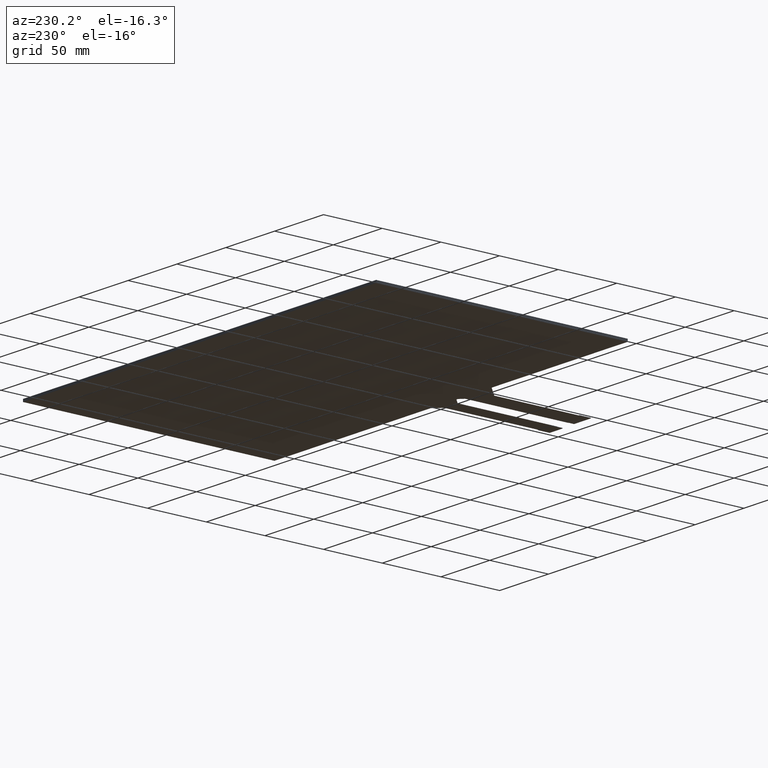
[diagram: clean part render]
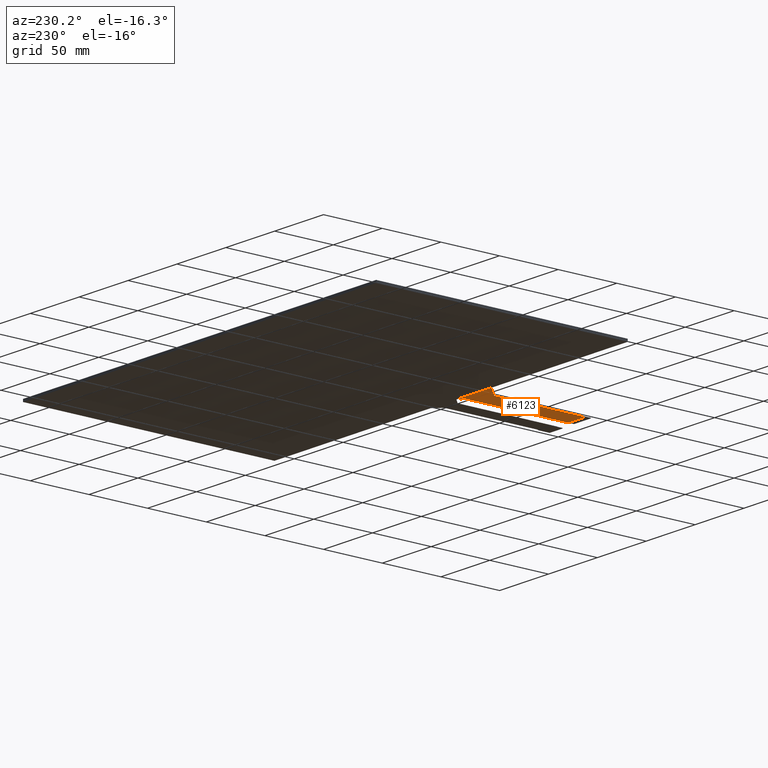
[diagram: same view with one face highlighted and labeled with its STEP entity id]
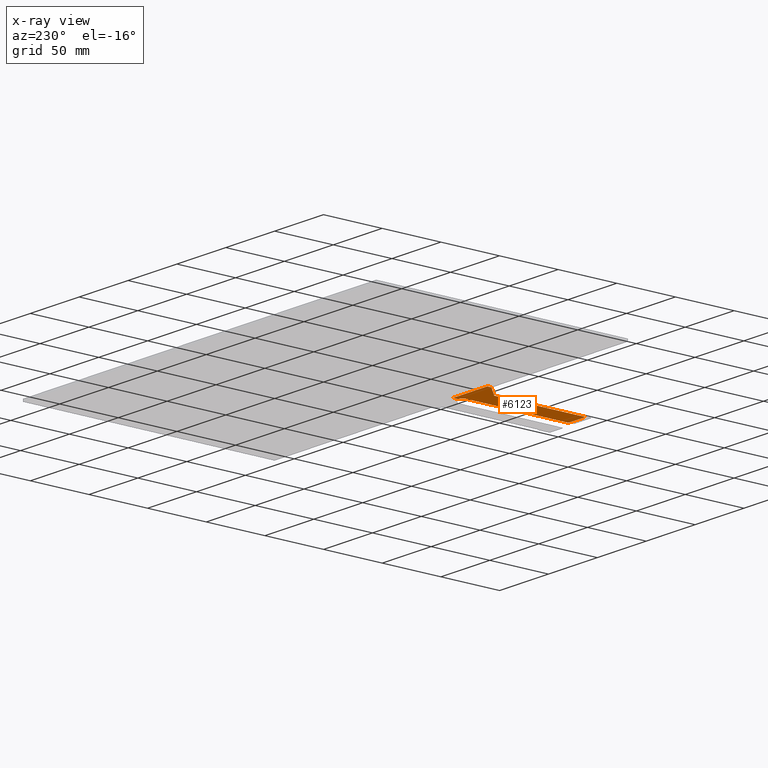
[diagram: x-ray of the same camera — body ghosted, the highlighted face saturated]
A machine part, auxiliary view. The second image highlights one B-rep face of the part: STEP entity #6123.
The next image is the same camera in x-ray: the body ghosted, the highlighted face saturated — about 0% of this face is hidden behind the body in this view.
In plain terms, the highlighted planar face has unit normal (0, 0, -1).
Its self-contained STEP definition (entity closure, byte-faithful):
#353=PLANE('',#6461);
#647=FACE_OUTER_BOUND('',#941,.T.);
#941=EDGE_LOOP('',(#5742,#5743,#5744,#5745,#5746,#5747,#5748,#5749,#5750,
#5751,#5752,#5753));
#989=LINE('',#8030,#1829);
#992=LINE('',#8041,#1832);
#1008=LINE('',#8082,#1848);
#1746=LINE('',#9576,#2586);
#1747=LINE('',#9578,#2587);
#1762=LINE('',#9608,#2602);
#1763=LINE('',#9611,#2603);
#1765=LINE('',#9614,#2605);
#1829=VECTOR('',#6537,10.);
#1832=VECTOR('',#6548,10.);
#1848=VECTOR('',#6586,10.);
#2586=VECTOR('',#7844,10.);
#2587=VECTOR('',#7847,10.);
#2602=VECTOR('',#7880,10.);
#2603=VECTOR('',#7883,10.);
#2605=VECTOR('',#7887,10.);
#2649=CIRCLE('',#6173,1.);
#2650=CIRCLE('',#6176,1.);
#2656=CIRCLE('',#6188,1.);
#2657=CIRCLE('',#6191,1.);
#2689=VERTEX_POINT('',#8012);
#2690=VERTEX_POINT('',#8014);
#2696=VERTEX_POINT('',#8028);
#2697=VERTEX_POINT('',#8032);
#2698=VERTEX_POINT('',#8033);
#2712=VERTEX_POINT('',#8074);
#2713=VERTEX_POINT('',#8076);
#2714=VERTEX_POINT('',#8080);
#2715=VERTEX_POINT('',#8084);
#3210=VERTEX_POINT('',#9574);
#3216=VERTEX_POINT('',#9606);
#3217=VERTEX_POINT('',#9610);
#3269=EDGE_CURVE('',#2689,#2690,#2649,.T.);
#3277=EDGE_CURVE('',#2689,#2696,#989,.T.);
#3278=EDGE_CURVE('',#2697,#2698,#2650,.T.);
#3282=EDGE_CURVE('',#2697,#2690,#992,.T.);
#3300=EDGE_CURVE('',#2712,#2713,#2656,.T.);
#3303=EDGE_CURVE('',#2712,#2714,#1008,.T.);
#3304=EDGE_CURVE('',#2715,#2714,#2657,.T.);
#4050=EDGE_CURVE('',#2696,#3210,#1746,.T.);
#4051=EDGE_CURVE('',#3210,#2713,#1747,.T.);
#4066=EDGE_CURVE('',#2715,#3216,#1762,.T.);
#4067=EDGE_CURVE('',#3217,#2698,#1763,.T.);
#4069=EDGE_CURVE('',#3217,#3216,#1765,.T.);
#5742=ORIENTED_EDGE('',*,*,#3278,.F.);
#5743=ORIENTED_EDGE('',*,*,#3282,.T.);
#5744=ORIENTED_EDGE('',*,*,#3269,.F.);
#5745=ORIENTED_EDGE('',*,*,#3277,.T.);
#5746=ORIENTED_EDGE('',*,*,#4050,.T.);
#5747=ORIENTED_EDGE('',*,*,#4051,.T.);
#5748=ORIENTED_EDGE('',*,*,#3300,.F.);
#5749=ORIENTED_EDGE('',*,*,#3303,.T.);
#5750=ORIENTED_EDGE('',*,*,#3304,.F.);
#5751=ORIENTED_EDGE('',*,*,#4066,.T.);
#5752=ORIENTED_EDGE('',*,*,#4069,.F.);
#5753=ORIENTED_EDGE('',*,*,#4067,.T.);
#6123=ADVANCED_FACE('',(#647),#353,.T.);
#6173=AXIS2_PLACEMENT_3D('',#8015,#6526,#6527);
#6176=AXIS2_PLACEMENT_3D('',#8034,#6540,#6541);
#6188=AXIS2_PLACEMENT_3D('',#8077,#6580,#6581);
#6191=AXIS2_PLACEMENT_3D('',#8085,#6589,#6590);
#6461=AXIS2_PLACEMENT_3D('',#9613,#7885,#7886);
#6526=DIRECTION('center_axis',(0.,0.,-1.));
#6527=DIRECTION('ref_axis',(-0.923531889914345,0.383521639951696,0.));
#6537=DIRECTION('',(5.27173776538863E-16,-1.,0.));
#6540=DIRECTION('center_axis',(0.,0.,1.));
#6541=DIRECTION('ref_axis',(0.923531889914352,-0.38352163995168,0.));
#6548=DIRECTION('',(-0.708388929935268,-0.705822303377532,0.));
#6580=DIRECTION('center_axis',(0.,0.,-1.));
#6581=DIRECTION('ref_axis',(0.924226414342084,0.38184490965885,0.));
#6586=DIRECTION('',(-0.705822303377533,0.708388929935268,0.));
#6589=DIRECTION('center_axis',(0.,0.,1.));
#6590=DIRECTION('ref_axis',(-0.924226414342084,-0.381844909658848,0.));
#7844=DIRECTION('',(-1.,0.,0.));
#7847=DIRECTION('',(-1.07527653716722E-16,1.,0.));
#7880=DIRECTION('',(0.,1.,0.));
#7883=DIRECTION('',(0.,-1.,0.));
#7885=DIRECTION('center_axis',(0.,0.,-1.));
#7886=DIRECTION('ref_axis',(-1.,0.,0.));
#7887=DIRECTION('',(-1.,-9.83041969784311E-17,0.));
#8012=CARTESIAN_POINT('',(-5.75000000000008,-116.466690138011,-0.3));
#8014=CARTESIAN_POINT('',(-5.45582230337761,-115.758301208075,-0.3));
#8015=CARTESIAN_POINT('Origin',(-4.75000000000008,-116.466690138011,-0.3));
#8028=CARTESIAN_POINT('',(-5.75000000000004,-203.715,-0.3));
#8030=CARTESIAN_POINT('',(-5.75000000000003,-208.715,-0.3));
#8032=CARTESIAN_POINT('',(-2.29417769662254,-112.608111835403,-0.3));
#8033=CARTESIAN_POINT('',(-2.00000000000008,-111.899722905467,-0.3));
#8034=CARTESIAN_POINT('Origin',(-3.00000000000008,-111.899722905467,-0.3));
#8041=CARTESIAN_POINT('',(-5.75000000000008,-116.051413043478,-0.3));
#8074=CARTESIAN_POINT('',(-23.5416110700648,-125.822328526044,-0.3));
#8076=CARTESIAN_POINT('',(-23.25,-126.528150829422,-0.3));
#8077=CARTESIAN_POINT('Origin',(-24.25,-126.528150829422,-0.3));
#8080=CARTESIAN_POINT('',(-36.7083889299354,-112.607671473956,-0.3));
#8082=CARTESIAN_POINT('',(-37.0000000000001,-112.315,-0.3));
#8084=CARTESIAN_POINT('',(-37.0000000000001,-111.901849170578,-0.3));
#8085=CARTESIAN_POINT('Origin',(-36.0000000000001,-111.901849170578,-0.3));
#9574=CARTESIAN_POINT('',(-23.25,-203.715,-0.3));
#9576=CARTESIAN_POINT('',(-12.6250000000001,-203.715,-0.3));
#9578=CARTESIAN_POINT('',(-23.25,-126.115,-0.3));
#9606=CARTESIAN_POINT('',(-37.0000000000001,-108.715,-0.3));
#9608=CARTESIAN_POINT('',(-37.0000000000001,-108.715,-0.3));
#9610=CARTESIAN_POINT('',(-2.00000000000008,-108.715,-0.3));
#9611=CARTESIAN_POINT('',(-2.00000000000008,-112.315,-0.3));
#9613=CARTESIAN_POINT('Origin',(-19.5000000000001,-158.715,-0.3));
#9614=CARTESIAN_POINT('',(80.6,-108.715,-0.3));